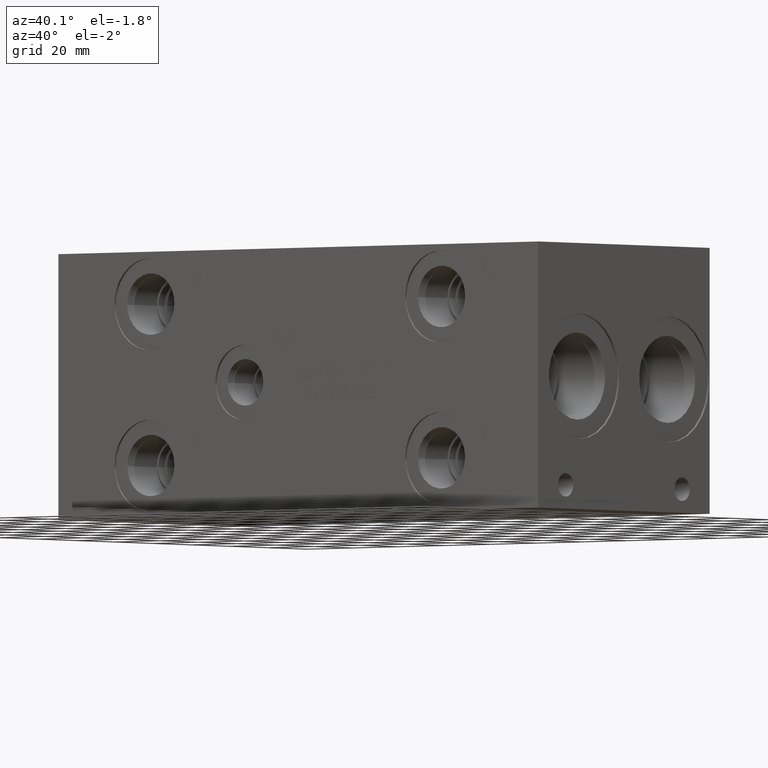
[diagram: clean part render]
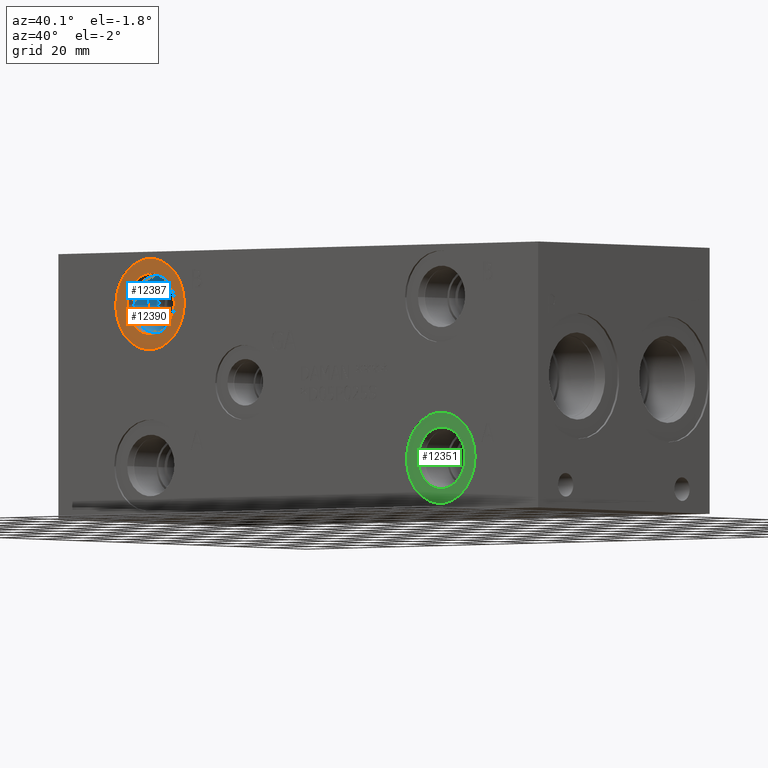
[diagram: same view with three faces highlighted in distinct colors, each labeled with its STEP entity id]
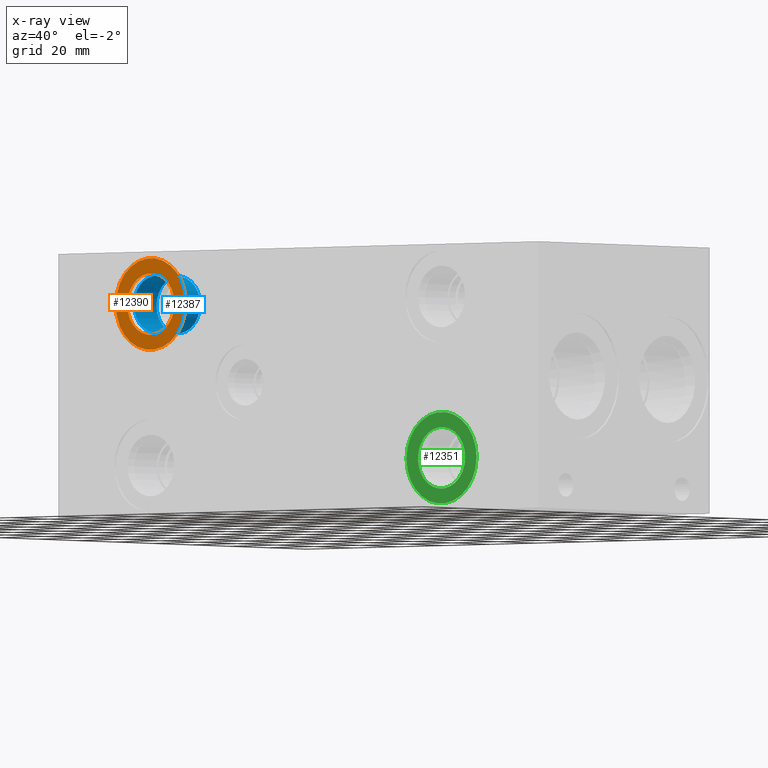
[diagram: x-ray of the same camera — body ghosted, the three highlighted faces saturated]
A machine part, auxiliary view with three faces highlighted in distinct colors.
The next image is the same camera in x-ray (body ghosted, the three faces saturated) — at least one of them is partly hidden behind the body in this view.
Their STEP definitions:

[orange] entity #12390 — the highlighted planar face has unit normal (0, 1, 0).
#338=CIRCLE('',#13079,15.3162);
#339=CIRCLE('',#13080,15.3162);
#340=CIRCLE('',#13082,10.2997);
#341=CIRCLE('',#13083,10.2997);
#512=FACE_BOUND('',#2183,.T.);
#873=PLANE('',#13081);
#1465=FACE_OUTER_BOUND('',#2182,.T.);
#2182=EDGE_LOOP('',(#10817,#10818));
#2183=EDGE_LOOP('',(#10819,#10820));
#5913=VERTEX_POINT('',#21211);
#5914=VERTEX_POINT('',#21213);
#5915=VERTEX_POINT('',#21217);
#5916=VERTEX_POINT('',#21218);
#7594=EDGE_CURVE('',#5913,#5914,#338,.T.);
#7595=EDGE_CURVE('',#5914,#5913,#339,.T.);
#7596=EDGE_CURVE('',#5915,#5916,#340,.T.);
#7597=EDGE_CURVE('',#5916,#5915,#341,.T.);
#10817=ORIENTED_EDGE('',*,*,#7595,.F.);
#10818=ORIENTED_EDGE('',*,*,#7594,.F.);
#10819=ORIENTED_EDGE('',*,*,#7596,.T.);
#10820=ORIENTED_EDGE('',*,*,#7597,.T.);
#12390=ADVANCED_FACE('',(#1465,#512),#873,.F.);
#13079=AXIS2_PLACEMENT_3D('',#21214,#15525,#15526);
#13080=AXIS2_PLACEMENT_3D('',#21215,#15527,#15528);
#13081=AXIS2_PLACEMENT_3D('',#21216,#15529,#15530);
#13082=AXIS2_PLACEMENT_3D('',#21219,#15531,#15532);
#13083=AXIS2_PLACEMENT_3D('',#21220,#15533,#15534);
#15525=DIRECTION('center_axis',(0.,1.,0.));
#15526=DIRECTION('ref_axis',(1.,0.,0.));
#15527=DIRECTION('center_axis',(0.,1.,0.));
#15528=DIRECTION('ref_axis',(1.,0.,0.));
#15529=DIRECTION('center_axis',(0.,1.,0.));
#15530=DIRECTION('ref_axis',(0.,0.,1.));
#15531=DIRECTION('center_axis',(0.,1.,0.));
#15532=DIRECTION('ref_axis',(1.,0.,0.));
#15533=DIRECTION('center_axis',(0.,1.,0.));
#15534=DIRECTION('ref_axis',(1.,0.,0.));
#21211=CARTESIAN_POINT('',(24.3586,0.7874,71.4248));
#21213=CARTESIAN_POINT('',(54.991,0.7874,71.4248));
#21214=CARTESIAN_POINT('Origin',(39.6748,0.7874,71.4248));
#21215=CARTESIAN_POINT('Origin',(39.6748,0.7874,71.4248));
#21216=CARTESIAN_POINT('Origin',(49.9745,0.7874,71.4248));
#21217=CARTESIAN_POINT('',(49.9745,0.7874,71.4248));
#21218=CARTESIAN_POINT('',(29.3751,0.787400000000001,71.4248));
#21219=CARTESIAN_POINT('Origin',(39.6748,0.7874,71.4248));
#21220=CARTESIAN_POINT('Origin',(39.6748,0.7874,71.4248));

[blue] entity #12387 — the highlighted cylindrical surface (bore or boss wall) has radius 9.525 mm, axis along (0, -1, 0).
#59=CYLINDRICAL_SURFACE('',#13075,9.525);
#334=CIRCLE('',#13072,9.525);
#335=CIRCLE('',#13073,9.525);
#337=CIRCLE('',#13076,9.525);
#1462=FACE_OUTER_BOUND('',#2179,.T.);
#2179=EDGE_LOOP('',(#10801,#10802,#10803,#10804,#10805));
#3342=LINE('',#21207,#4459);
#4459=VECTOR('',#15518,9.525);
#5909=VERTEX_POINT('',#21198);
#5910=VERTEX_POINT('',#21199);
#5912=VERTEX_POINT('',#21205);
#7587=EDGE_CURVE('',#5909,#5910,#334,.T.);
#7588=EDGE_CURVE('',#5910,#5909,#335,.T.);
#7590=EDGE_CURVE('',#5912,#5912,#337,.T.);
#7591=EDGE_CURVE('',#5912,#5910,#3342,.T.);
#10801=ORIENTED_EDGE('',*,*,#7590,.F.);
#10802=ORIENTED_EDGE('',*,*,#7591,.T.);
#10803=ORIENTED_EDGE('',*,*,#7587,.F.);
#10804=ORIENTED_EDGE('',*,*,#7588,.F.);
#10805=ORIENTED_EDGE('',*,*,#7591,.F.);
#12387=ADVANCED_FACE('',(#1462),#59,.F.);
#13072=AXIS2_PLACEMENT_3D('',#21200,#15508,#15509);
#13073=AXIS2_PLACEMENT_3D('',#21201,#15510,#15511);
#13075=AXIS2_PLACEMENT_3D('',#21204,#15514,#15515);
#13076=AXIS2_PLACEMENT_3D('',#21206,#15516,#15517);
#15508=DIRECTION('center_axis',(0.,-1.,0.));
#15509=DIRECTION('ref_axis',(1.,0.,0.));
#15510=DIRECTION('center_axis',(0.,-1.,0.));
#15511=DIRECTION('ref_axis',(1.,0.,0.));
#15514=DIRECTION('center_axis',(0.,-1.,0.));
#15515=DIRECTION('ref_axis',(1.,0.,0.));
#15516=DIRECTION('center_axis',(0.,1.,0.));
#15517=DIRECTION('ref_axis',(1.,0.,0.));
#15518=DIRECTION('',(0.,1.,0.));
#21198=CARTESIAN_POINT('',(49.1998,15.0622,71.4248));
#21199=CARTESIAN_POINT('',(30.1498,15.0622,71.4248));
#21200=CARTESIAN_POINT('Origin',(39.6748,15.0622,71.4248));
#21201=CARTESIAN_POINT('Origin',(39.6748,15.0622,71.4248));
#21204=CARTESIAN_POINT('Origin',(39.6748,7.5311,71.4248));
#21205=CARTESIAN_POINT('',(30.1498,3.4036,71.4248));
#21206=CARTESIAN_POINT('Origin',(39.6748,3.4036,71.4248));
#21207=CARTESIAN_POINT('',(30.1498,7.5311,71.4248));

[green] entity #12351 — the highlighted planar face has unit normal (0, 1, 0).
#278=CIRCLE('',#12980,15.3162);
#279=CIRCLE('',#12981,15.3162);
#280=CIRCLE('',#12983,10.2997);
#281=CIRCLE('',#12984,10.2997);
#505=FACE_BOUND('',#2137,.T.);
#866=PLANE('',#12982);
#1426=FACE_OUTER_BOUND('',#2136,.T.);
#2136=EDGE_LOOP('',(#10628,#10629));
#2137=EDGE_LOOP('',(#10630,#10631));
#5849=VERTEX_POINT('',#21016);
#5850=VERTEX_POINT('',#21018);
#5851=VERTEX_POINT('',#21022);
#5852=VERTEX_POINT('',#21023);
#7502=EDGE_CURVE('',#5849,#5850,#278,.T.);
#7503=EDGE_CURVE('',#5850,#5849,#279,.T.);
#7504=EDGE_CURVE('',#5851,#5852,#280,.T.);
#7505=EDGE_CURVE('',#5852,#5851,#281,.T.);
#10628=ORIENTED_EDGE('',*,*,#7503,.F.);
#10629=ORIENTED_EDGE('',*,*,#7502,.F.);
#10630=ORIENTED_EDGE('',*,*,#7504,.T.);
#10631=ORIENTED_EDGE('',*,*,#7505,.T.);
#12351=ADVANCED_FACE('',(#1426,#505),#866,.F.);
#12980=AXIS2_PLACEMENT_3D('',#21019,#15295,#15296);
#12981=AXIS2_PLACEMENT_3D('',#21020,#15297,#15298);
#12982=AXIS2_PLACEMENT_3D('',#21021,#15299,#15300);
#12983=AXIS2_PLACEMENT_3D('',#21024,#15301,#15302);
#12984=AXIS2_PLACEMENT_3D('',#21025,#15303,#15304);
#15295=DIRECTION('center_axis',(0.,1.,0.));
#15296=DIRECTION('ref_axis',(1.,0.,0.));
#15297=DIRECTION('center_axis',(0.,1.,0.));
#15298=DIRECTION('ref_axis',(1.,0.,0.));
#15299=DIRECTION('center_axis',(0.,1.,0.));
#15300=DIRECTION('ref_axis',(0.,0.,1.));
#15301=DIRECTION('center_axis',(0.,1.,0.));
#15302=DIRECTION('ref_axis',(1.,0.,0.));
#15303=DIRECTION('center_axis',(0.,1.,0.));
#15304=DIRECTION('ref_axis',(1.,0.,0.));
#21016=CARTESIAN_POINT('',(151.3586,0.7874,17.4752));
#21018=CARTESIAN_POINT('',(181.991,0.7874,17.4752));
#21019=CARTESIAN_POINT('Origin',(166.6748,0.7874,17.4752));
#21020=CARTESIAN_POINT('Origin',(166.6748,0.7874,17.4752));
#21021=CARTESIAN_POINT('Origin',(176.9745,0.7874,17.4752));
#21022=CARTESIAN_POINT('',(176.9745,0.7874,17.4752));
#21023=CARTESIAN_POINT('',(156.3751,0.787399999999999,17.4752));
#21024=CARTESIAN_POINT('Origin',(166.6748,0.7874,17.4752));
#21025=CARTESIAN_POINT('Origin',(166.6748,0.7874,17.4752));